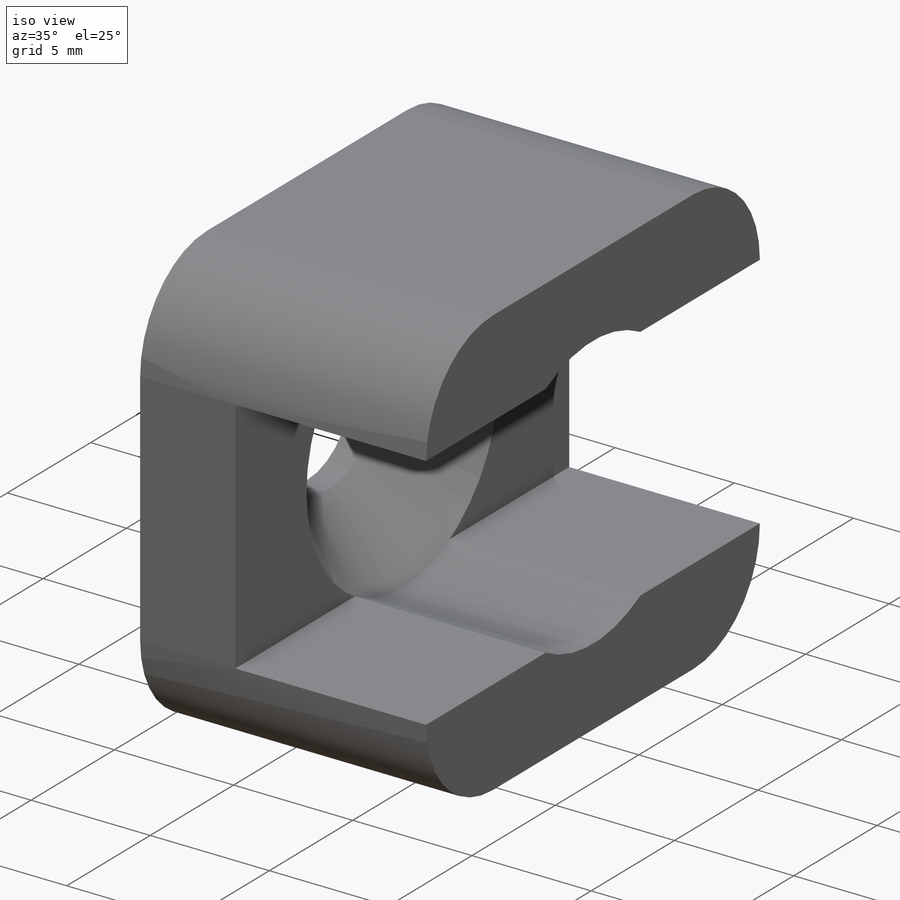
[diagram: iso view]
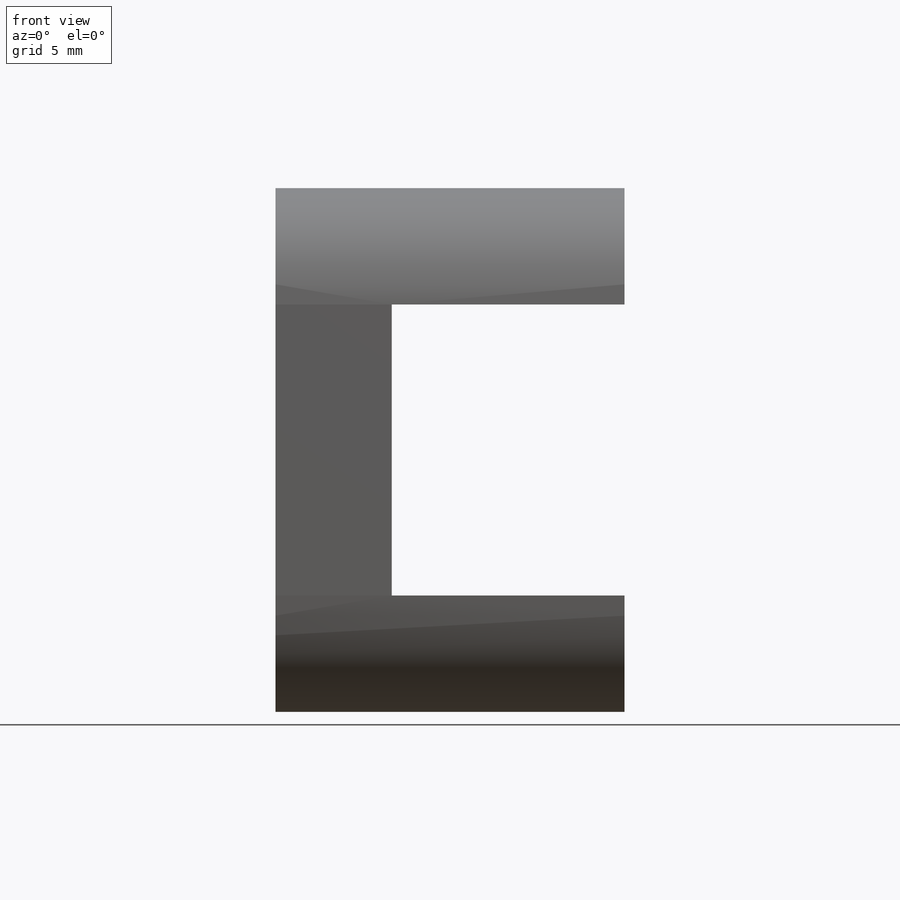
[diagram: front view]
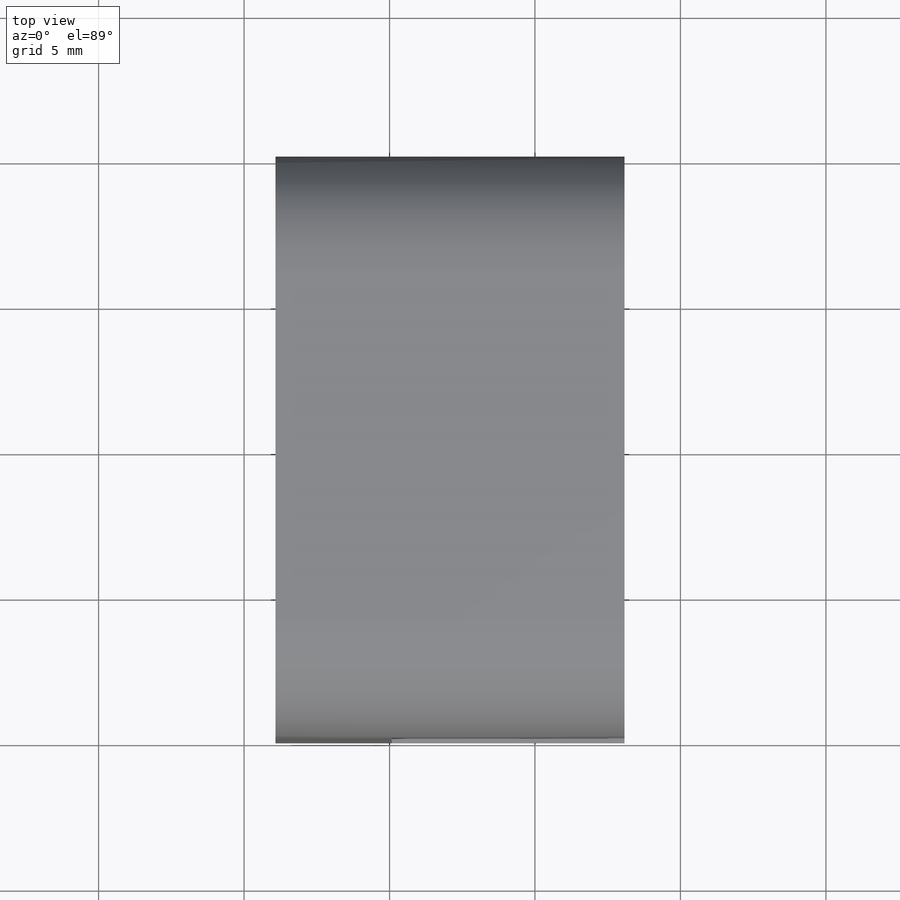
[diagram: top view]
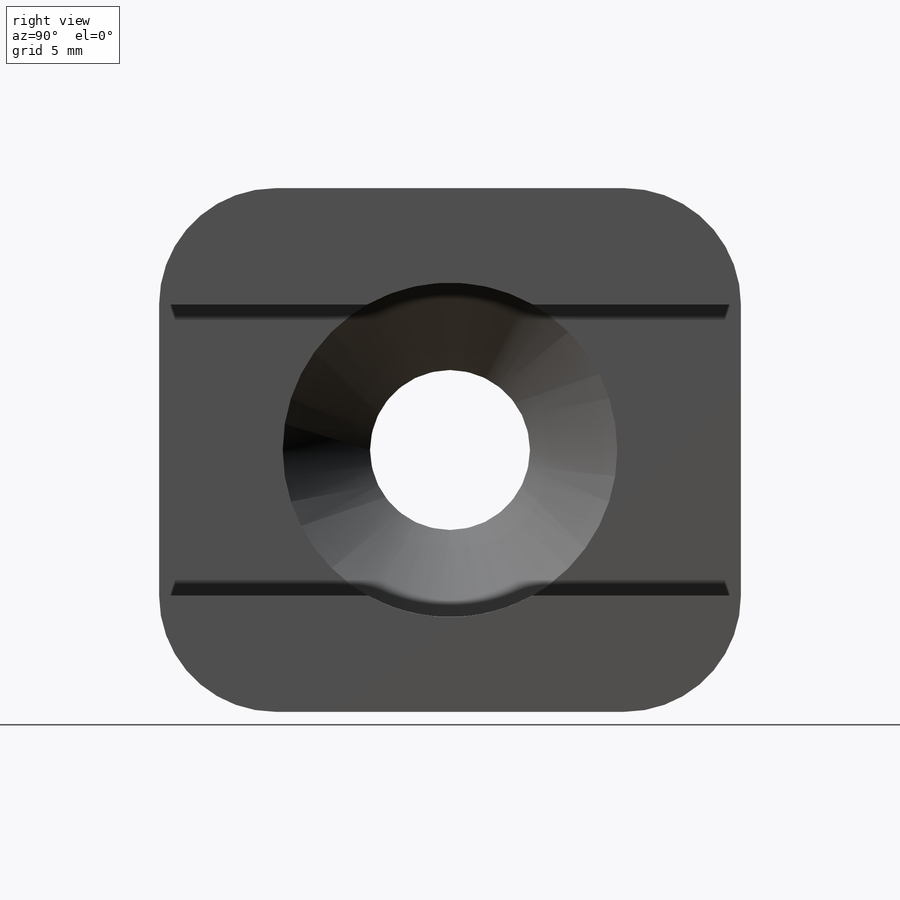
[diagram: right view]
SOLIDWORKS PART (.sldprt)
format: sldprt  version: not decoded by parser v0  size: 212,992 bytes
history: native  units: mm
features: plane x5, sketch x4, cut_extrude x2, material x1, extrude x1, cut_revolve x1, fillet x1 (+9 scaffold rows collapsed)
feature tree (24):
  scaffold x9  (default folders/planes/origin — collapsed)
  material  "Matériau <non spécifié>"
  plane  "Plan de face"
  plane  "Plan de dessus"
  plane  "Plan de droite"
  plane  "Plan1"  Offset=8.07883mm
  sketch  "Esquisse1"
  extrude  "Boss.-Extru.1"  Depth=12mm
  sketch  "Esquisse2"
  cut_extrude  "Enlèv. mat.-Extru.1"  Depth=20mm
  sketch  "Esquisse3"  dims[D1=11.5mm D2=10.0mm D3=9.0mm]
  cut_extrude  "Enlèv. mat.-Extru.2"  Depth=8mm
  plane  "Plan2"
  sketch  "Esquisse5"  dims[c1.D1=2.75mm c1.D2=9.0mm c1.D3=5.75mm c2.D3=45.0deg c2.D4=5.75mm c2.D5=1.0mm c2.D6=5.75mm]
  cut_revolve  "Enlèvement de matière-Révolution1"  Angle=360deg
  fillet  "Congé2"  Radius=4mm
decode coverage: 7 of 9 modeling features carry decoded parameters
note: suppression state not decoded; provenance and decode notes live in map.json
